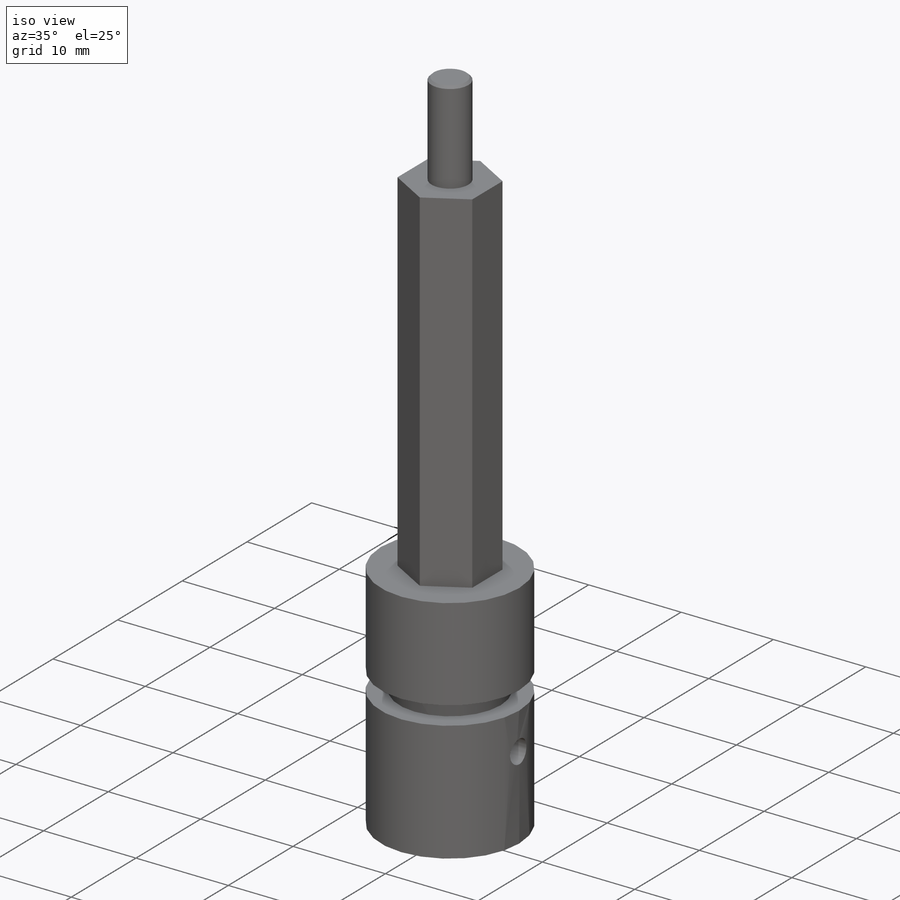
[diagram: iso view]
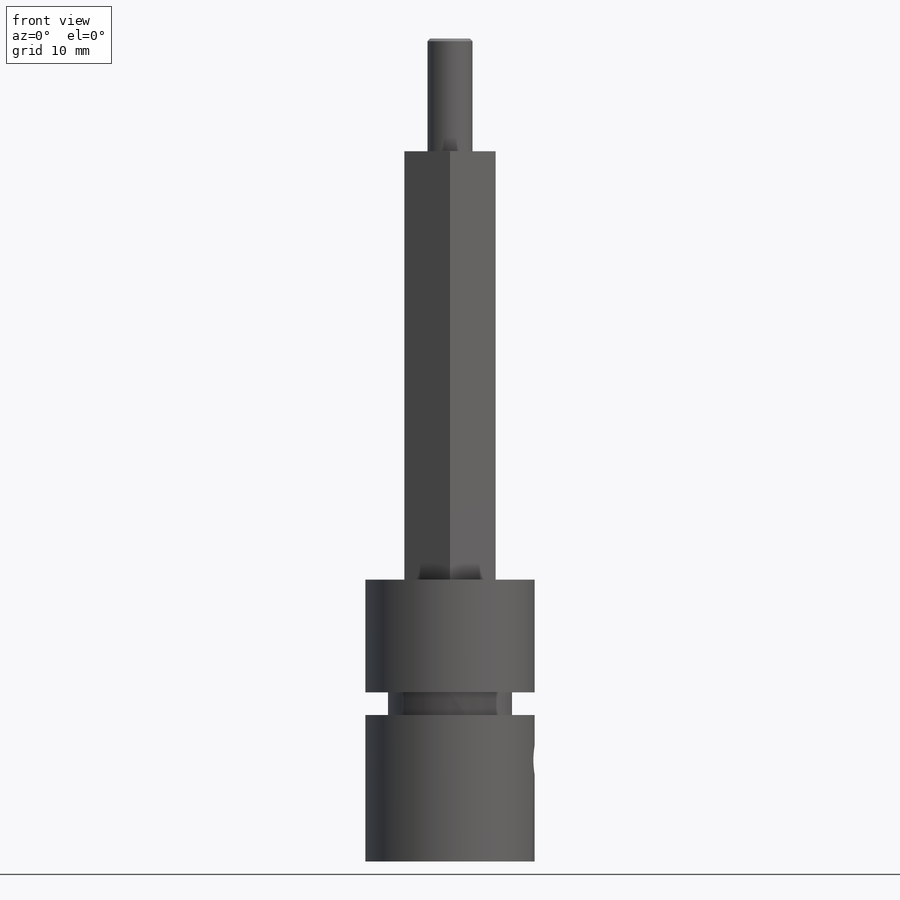
[diagram: front view]
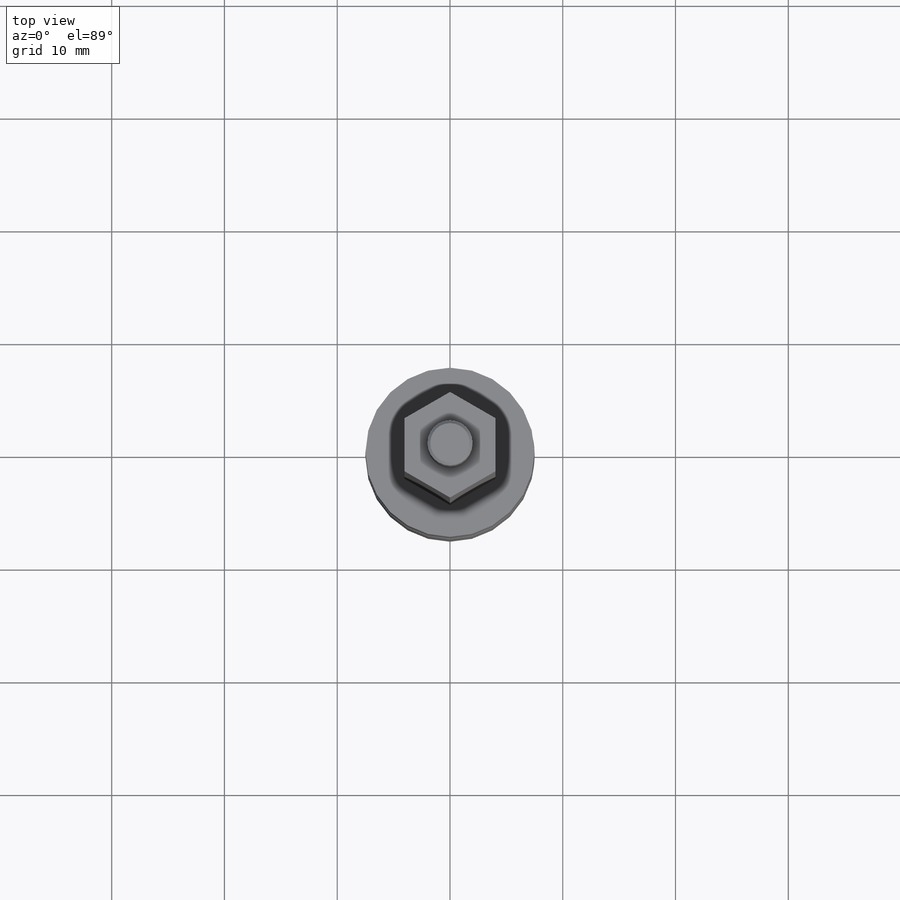
[diagram: top view]
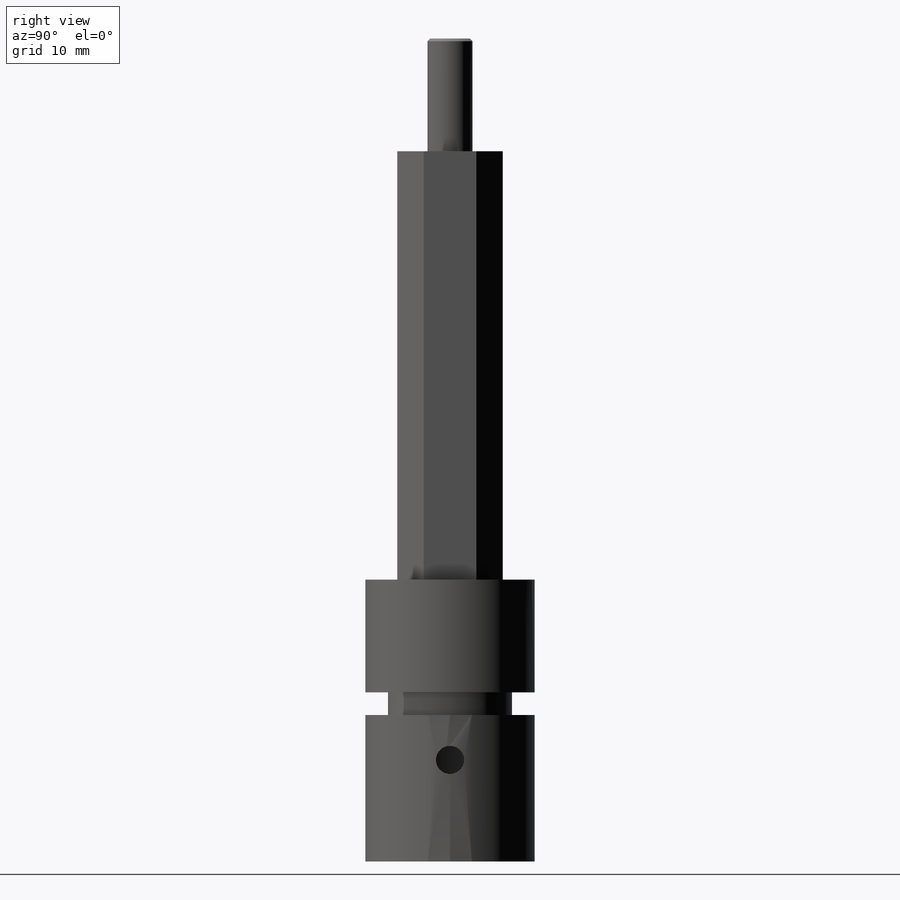
[diagram: right view]
SOLIDWORKS PART (.sldprt)
format: sldprt  version: not decoded by parser v0  size: 298,496 bytes
history: native  units: mm
features: sketch x13, plane x3, extrude x3, cut_extrude x3, thread x2, material x1, hole x1, chamfer x1, cut_revolve x1 + 5 further entries (+6 scaffold rows collapsed)
feature tree (39):
  scaffold x6  (default folders/planes/origin — collapsed)
  material  "1060 合金"
  "ｿﾘｯﾄﾞ ﾎﾞﾃﾞｨ"
  "ｻｰﾌｪｽ ﾎﾞﾃﾞｨ（複数）"
  plane  "VERT"
  plane  "HOR"
  plane  "CTR"
  "CS_DEF"
  "A_Y"
  "A_Z"
  sketch  "PNT_CG"
  sketch  "ｽｹｯﾁ1"  dims[D1=15.0mm]
  extrude  "ﾎﾞｽ - 押し出し1"  Depth=25mm
  sketch  "ｽｹｯﾁ2"  dims[D1=8.1mm]
  extrude  "ﾎﾞｽ - 押し出し2"  Depth=38mm
  sketch  "ｽｹｯﾁ3"  dims[D1=~2.570129mm]
  sketch  "ｽｹｯﾁ5"  dims[D1=6.0mm D2=2.5mm]
  cut_extrude  "ｶｯﾄ - 押し出し1"  Depth=15mm
  sketch  "ｽｹｯﾁ6"
  cut_extrude  "ｶｯﾄ - 押し出し2"  Depth=3mm
  sketch  "ｽｹｯﾁ14"
  sketch  "ｽｹｯﾁ15"  dims[D1=6.0mm]
  hole  "M3x0.5 ねじ穴1"  [1 undecoded]
  sketch  "ｽｹｯﾁ17"
  sketch  "ｽｹｯﾁ16"  dims[hole-wizard template sketch: 60 standard entries collapsed; hole parameters kept: c18.次ｻｰﾌｪｽまでのねじ下穴ﾄﾞﾘﾙの深さ=5.0mm]
  thread  "穴のねじ山1"  Diameter=3mm  [1 undecoded]
  sketch  "ｽｹｯﾁ18"
  sketch  "ｽｹｯﾁ21"
  cut_extrude  "ｶｯﾄ - 押し出し3"  Depth=15mm
  extrude  "ﾎﾞｽ - 押し出し3"  [1 undecoded]
  thread  "ねじ山3"  Diameter=3.22mm  [1 undecoded]
  chamfer  "面取り1"  Distance=0.25mm Angle=45deg
  sketch  "ｽｹｯﾁ22"  dims[D1=2.0mm D2=13.0mm D3=2.0mm]
  cut_revolve  "ｶｯﾄ - 回転1"  Angle=360deg
decode coverage: 16 of 24 modeling features carry decoded parameters; 5 rows unclassified (native names shown)
note: ~ marks probable driven/reference dimensions
note: 4 parameter values undecoded
note: suppression state not decoded; provenance and decode notes live in map.json
